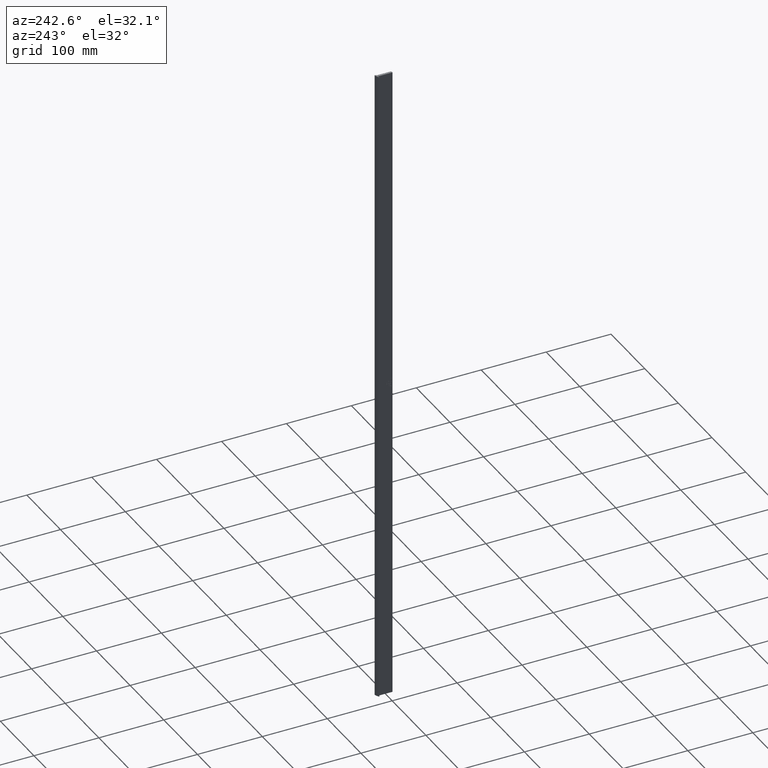
[diagram: clean part render]
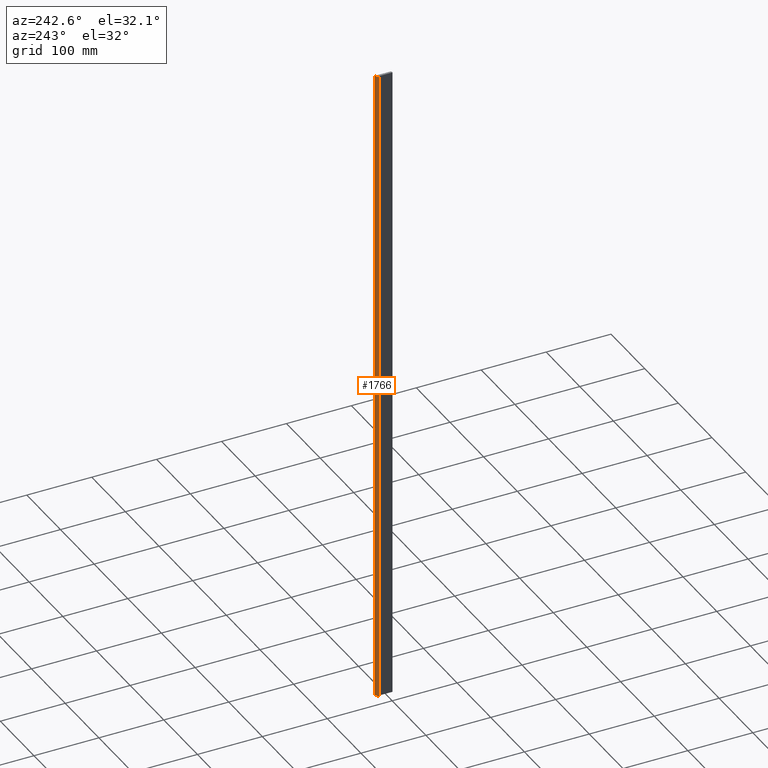
[diagram: same view with one face highlighted and labeled with its STEP entity id]
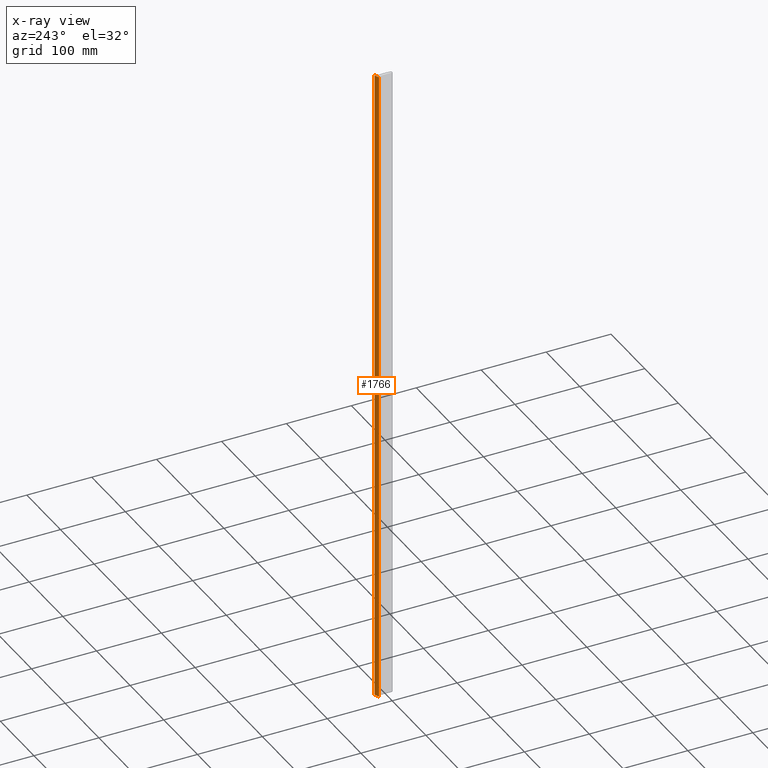
[diagram: x-ray of the same camera — body ghosted, the highlighted face saturated]
A machine part, auxiliary view. The second image highlights one B-rep face of the part: STEP entity #1766.
The next image is the same camera in x-ray: the body ghosted, the highlighted face saturated — about 0% of this face is hidden behind the body in this view.
In plain terms, the highlighted cylindrical surface (edge-blend (fillet) strip) has radius 17 mm, axis along (-0, -0, -1).
Its self-contained STEP definition (entity closure, byte-faithful):
#960 = CIRCLE ( 'NONE', #14993, 16.99999999999976197 ) ;
#979 = ORIENTED_EDGE ( 'NONE', *, *, #13371, .T. ) ;
#1327 = CARTESIAN_POINT ( 'NONE',  ( -3.539287021226489749, 22.06156275125557187, 500.0000000000000000 ) ) ;
#1766 = ADVANCED_FACE ( 'NONE', ( #5721 ), #17028, .T. ) ;
#2984 = CARTESIAN_POINT ( 'NONE',  ( 3.362205515593084115, 25.29440306337985334, 500.0000000000000000 ) ) ;
#3514 = VERTEX_POINT ( 'NONE', #16554 ) ;
#3692 = DIRECTION ( 'NONE',  ( -0.000000000000000000, -0.000000000000000000, -1.000000000000000000 ) ) ;
#3861 = DIRECTION ( 'NONE',  ( 0.000000000000000000, 0.000000000000000000, 1.000000000000000000 ) ) ;
#4620 = EDGE_CURVE ( 'NONE', #8571, #18363, #9131, .T. ) ;
#4883 = CARTESIAN_POINT ( 'NONE',  ( -3.539287021226489749, 22.06156275125557187, -500.0000000000000000 ) ) ;
#5324 = CARTESIAN_POINT ( 'NONE',  ( -3.539287021226489749, 22.06156275125557187, 500.0000000000000000 ) ) ;
#5677 = CARTESIAN_POINT ( 'NONE',  ( 6.939252821843117758, 8.674994753550009818, 500.0000000000000000 ) ) ;
#5721 = FACE_OUTER_BOUND ( 'NONE', #15242, .T. ) ;
#6097 = DIRECTION ( 'NONE',  ( 0.000000000000000000, 0.000000000000000000, 1.000000000000000000 ) ) ;
#7273 = EDGE_CURVE ( 'NONE', #3514, #18363, #17530, .T. ) ;
#7338 = DIRECTION ( 'NONE',  ( -0.000000000000000000, -0.000000000000000000, -1.000000000000000000 ) ) ;
#7835 = DIRECTION ( 'NONE',  ( -1.000000000000000000, 0.000000000000000000, 0.000000000000000000 ) ) ;
#8571 = VERTEX_POINT ( 'NONE', #5324 ) ;
#9131 = LINE ( 'NONE', #1327, #11425 ) ;
#9433 = VECTOR ( 'NONE', #7338, 1000.000000000000000 ) ;
#9458 = CARTESIAN_POINT ( 'NONE',  ( 6.939252821843117758, 8.674994753550009818, 500.0000000000000000 ) ) ;
#9561 = ORIENTED_EDGE ( 'NONE', *, *, #4620, .F. ) ;
#10207 = AXIS2_PLACEMENT_3D ( 'NONE', #9458, #3692, #7835 ) ;
#10280 = CARTESIAN_POINT ( 'NONE',  ( 3.362205515593084115, 25.29440306337985334, 500.0000000000000000 ) ) ;
#11047 = CARTESIAN_POINT ( 'NONE',  ( 6.939252821843117758, 8.674994753550009818, -500.0000000000000000 ) ) ;
#11137 = ORIENTED_EDGE ( 'NONE', *, *, #7273, .T. ) ;
#11425 = VECTOR ( 'NONE', #11459, 1000.000000000000000 ) ;
#11459 = DIRECTION ( 'NONE',  ( -0.000000000000000000, -0.000000000000000000, -1.000000000000000000 ) ) ;
#12394 = LINE ( 'NONE', #2984, #9433 ) ;
#12578 = DIRECTION ( 'NONE',  ( 1.000000000000000000, 0.000000000000000000, 0.000000000000000000 ) ) ;
#13364 = VERTEX_POINT ( 'NONE', #10280 ) ;
#13371 = EDGE_CURVE ( 'NONE', #13364, #3514, #12394, .T. ) ;
#14993 = AXIS2_PLACEMENT_3D ( 'NONE', #5677, #6097, #16287 ) ;
#15242 = EDGE_LOOP ( 'NONE', ( #11137, #9561, #18160, #979 ) ) ;
#16150 = EDGE_CURVE ( 'NONE', #13364, #8571, #960, .T. ) ;
#16287 = DIRECTION ( 'NONE',  ( 1.000000000000000000, 0.000000000000000000, 0.000000000000000000 ) ) ;
#16554 = CARTESIAN_POINT ( 'NONE',  ( 3.362205515593084115, 25.29440306337985334, -500.0000000000000000 ) ) ;
#16954 = AXIS2_PLACEMENT_3D ( 'NONE', #11047, #3861, #12578 ) ;
#17028 = CYLINDRICAL_SURFACE ( 'NONE', #10207, 16.99999999999976197 ) ;
#17530 = CIRCLE ( 'NONE', #16954, 16.99999999999976197 ) ;
#18160 = ORIENTED_EDGE ( 'NONE', *, *, #16150, .F. ) ;
#18363 = VERTEX_POINT ( 'NONE', #4883 ) ;